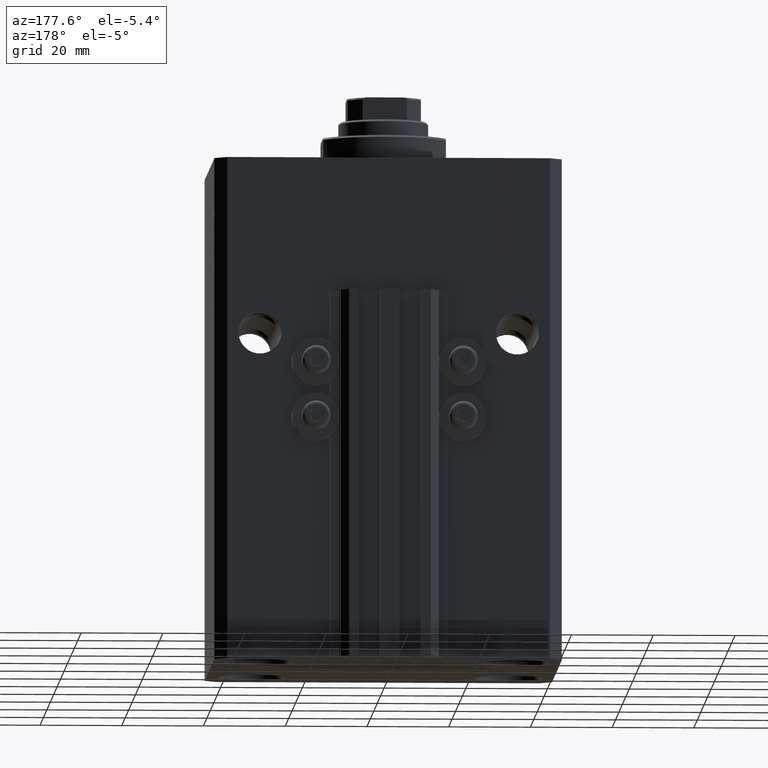
[diagram: clean part render]
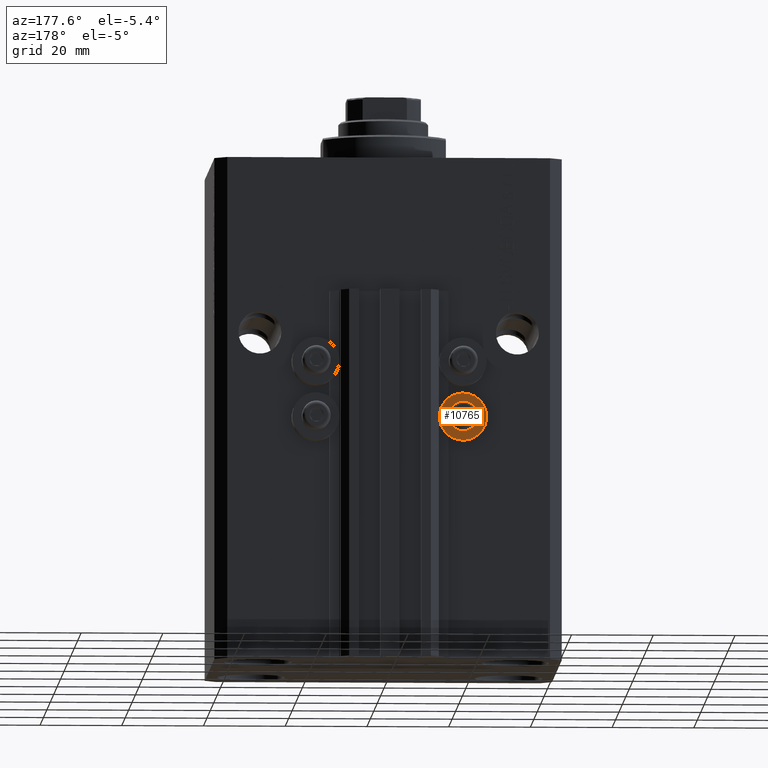
[diagram: same view with one face highlighted and labeled with its STEP entity id]
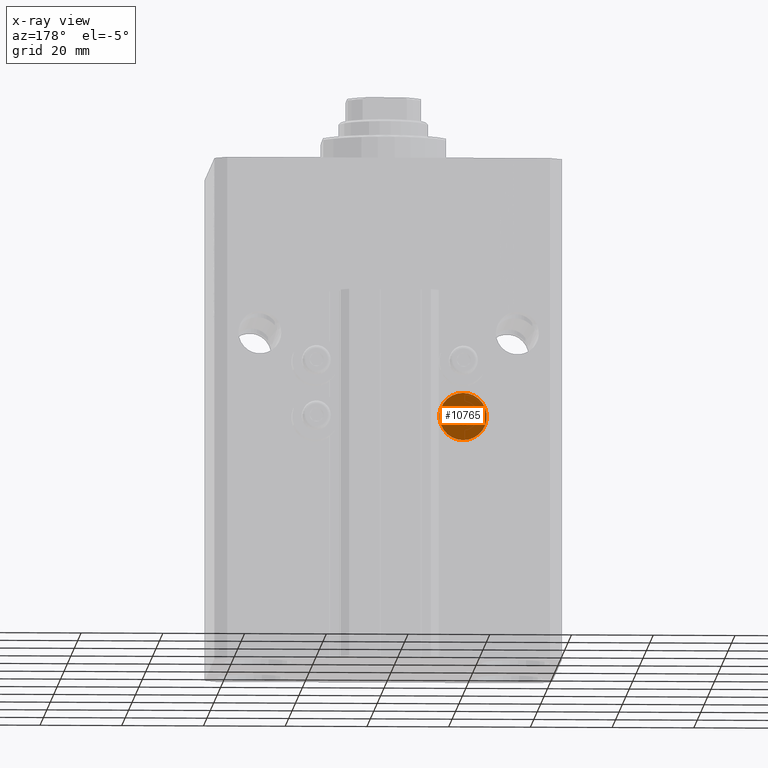
[diagram: x-ray of the same camera — body ghosted, the highlighted face saturated]
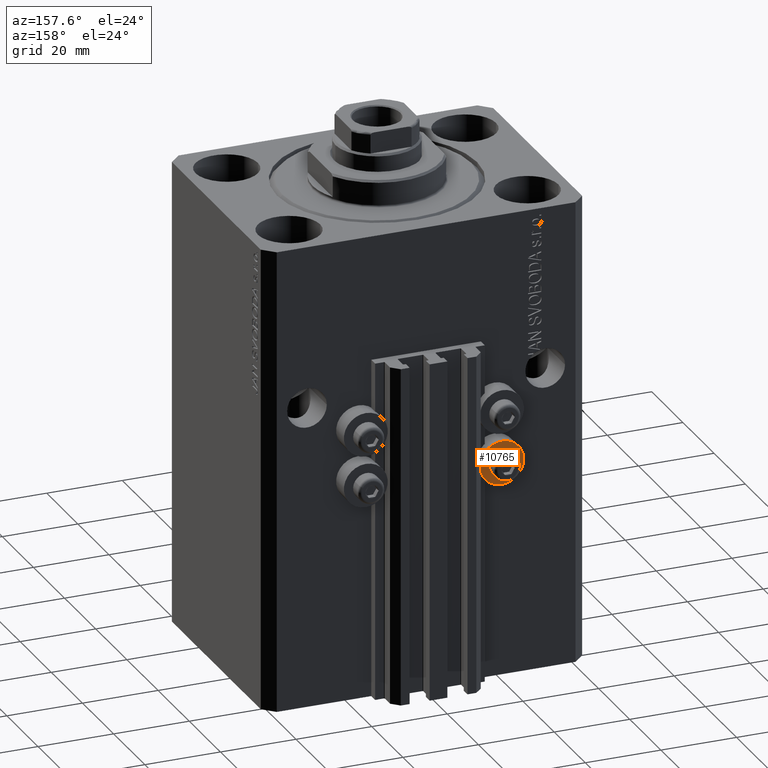
[diagram: same view with one face highlighted and labeled with its STEP entity id]
A machine part, auxiliary view. The second image highlights one B-rep face of the part: STEP entity #10765.
The next image is the same camera in x-ray: the body ghosted, the highlighted face saturated — about 0% of this face is hidden behind the body in this view.
A second angle (auxiliary view) of the same face is appended — the face is thin or edge-on in the first view.
In plain terms, the highlighted planar face has unit normal (0, -1, 0).
Its self-contained STEP definition (entity closure, byte-faithful):
#2370 = ORIENTED_EDGE ( 'NONE', *, *, #28521, .F. ) ;
#4909 = FACE_OUTER_BOUND ( 'NONE', #40106, .T. ) ;
#5146 = DIRECTION ( 'NONE',  ( 0.000000000000000000, 0.000000000000000000, 1.000000000000000000 ) ) ;
#6695 = VERTEX_POINT ( 'NONE', #43301 ) ;
#6746 = AXIS2_PLACEMENT_3D ( 'NONE', #26710, #8421, #30565 ) ;
#7000 = VERTEX_POINT ( 'NONE', #28807 ) ;
#8084 = CARTESIAN_POINT ( 'NONE',  ( -18.00000000000000355, 36.49999999996099120, -69.79999999999999716 ) ) ;
#8421 = DIRECTION ( 'NONE',  ( -0.000000000000000000, -1.000000000000000000, -0.000000000000000000 ) ) ;
#10413 = ORIENTED_EDGE ( 'NONE', *, *, #38532, .T. ) ;
#10765 = ADVANCED_FACE ( 'NONE', ( #37874, #4909 ), #12387, .F. ) ;
#12387 = PLANE ( 'NONE',  #43692 ) ;
#14163 = DIRECTION ( 'NONE',  ( -0.000000000000000000, -1.000000000000000000, -0.000000000000000000 ) ) ;
#14953 = ORIENTED_EDGE ( 'NONE', *, *, #46737, .T. ) ;
#16425 = ORIENTED_EDGE ( 'NONE', *, *, #23422, .F. ) ;
#17278 = CIRCLE ( 'NONE', #28777, 5.799999999999999822 ) ;
#17881 = CIRCLE ( 'NONE', #44752, 5.799999999999999822 ) ;
#18284 = DIRECTION ( 'NONE',  ( -0.000000000000000000, -1.000000000000000000, -0.000000000000000000 ) ) ;
#18775 = DIRECTION ( 'NONE',  ( 0.000000000000000000, 0.000000000000000000, -1.000000000000000000 ) ) ;
#21866 = CARTESIAN_POINT ( 'NONE',  ( -18.00000000000000355, 36.49999999996099120, -66.00000000000000000 ) ) ;
#23422 = EDGE_CURVE ( 'NONE', #7000, #26515, #17881, .T. ) ;
#24506 = DIRECTION ( 'NONE',  ( 0.000000000000000000, 0.000000000000000000, -1.000000000000000000 ) ) ;
#25016 = CARTESIAN_POINT ( 'NONE',  ( -18.00000000000000355, 36.49999999996099120, -64.00000000000000000 ) ) ;
#25731 = DIRECTION ( 'NONE',  ( 0.000000000000000000, 0.000000000000000000, -1.000000000000000000 ) ) ;
#26515 = VERTEX_POINT ( 'NONE', #8084 ) ;
#26710 = CARTESIAN_POINT ( 'NONE',  ( -18.00000000000000355, 36.49999999996099120, -64.00000000000000000 ) ) ;
#26937 = DIRECTION ( 'NONE',  ( -0.000000000000000000, -1.000000000000000000, -0.000000000000000000 ) ) ;
#27065 = CARTESIAN_POINT ( 'NONE',  ( -12.20000000000000284, 36.49999999996099120, -64.00000000000000000 ) ) ;
#28355 = CARTESIAN_POINT ( 'NONE',  ( -18.00000000000000355, 36.49999999996099120, -64.00000000000000000 ) ) ;
#28521 = EDGE_CURVE ( 'NONE', #26515, #7000, #17278, .T. ) ;
#28777 = AXIS2_PLACEMENT_3D ( 'NONE', #25016, #18284, #25731 ) ;
#28807 = CARTESIAN_POINT ( 'NONE',  ( -18.00000000000000355, 36.49999999996099120, -58.20000000000000284 ) ) ;
#30565 = DIRECTION ( 'NONE',  ( 0.000000000000000000, 0.000000000000000000, -1.000000000000000000 ) ) ;
#33737 = EDGE_LOOP ( 'NONE', ( #10413, #14953 ) ) ;
#36068 = CIRCLE ( 'NONE', #40663, 2.000000000000001776 ) ;
#37874 = FACE_BOUND ( 'NONE', #33737, .T. ) ;
#38532 = EDGE_CURVE ( 'NONE', #6695, #40714, #47451, .T. ) ;
#40106 = EDGE_LOOP ( 'NONE', ( #2370, #16425 ) ) ;
#40663 = AXIS2_PLACEMENT_3D ( 'NONE', #44748, #26937, #18775 ) ;
#40714 = VERTEX_POINT ( 'NONE', #21866 ) ;
#41721 = DIRECTION ( 'NONE',  ( 0.000000000000000000, -1.000000000000000000, 0.000000000000000000 ) ) ;
#43301 = CARTESIAN_POINT ( 'NONE',  ( -18.00000000000000355, 36.49999999996099120, -62.00000000000000000 ) ) ;
#43692 = AXIS2_PLACEMENT_3D ( 'NONE', #27065, #41721, #5146 ) ;
#44748 = CARTESIAN_POINT ( 'NONE',  ( -18.00000000000000355, 36.49999999996099120, -64.00000000000000000 ) ) ;
#44752 = AXIS2_PLACEMENT_3D ( 'NONE', #28355, #14163, #24506 ) ;
#46737 = EDGE_CURVE ( 'NONE', #40714, #6695, #36068, .T. ) ;
#47451 = CIRCLE ( 'NONE', #6746, 2.000000000000001776 ) ;